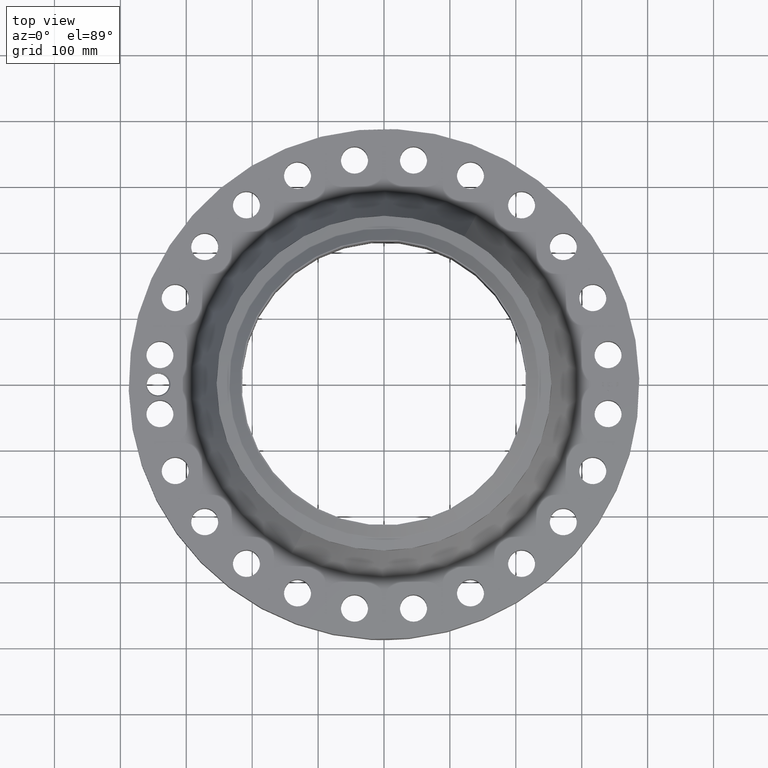
[diagram: clean part render]
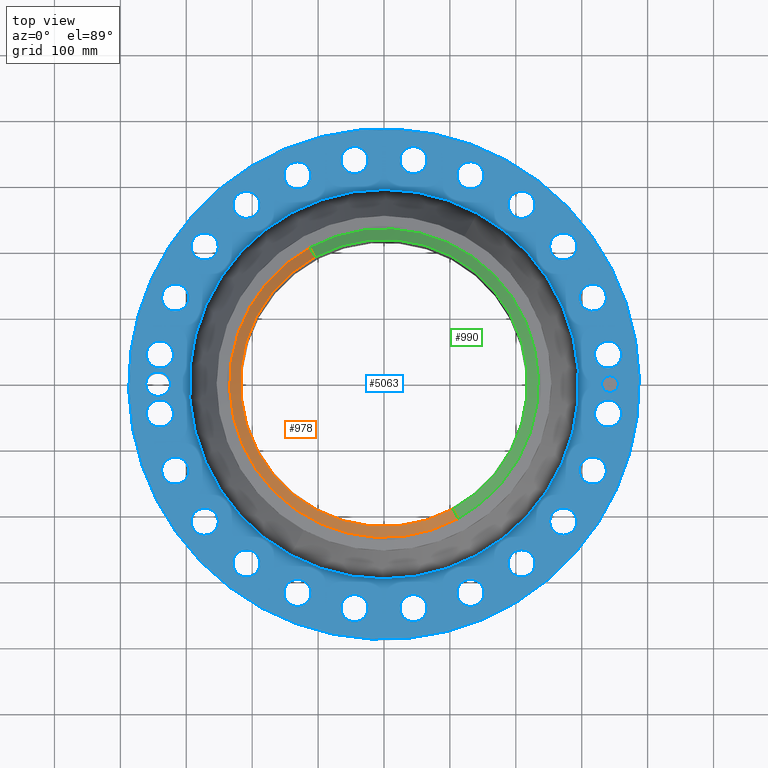
[diagram: same view with three faces highlighted in distinct colors, each labeled with its STEP entity id]
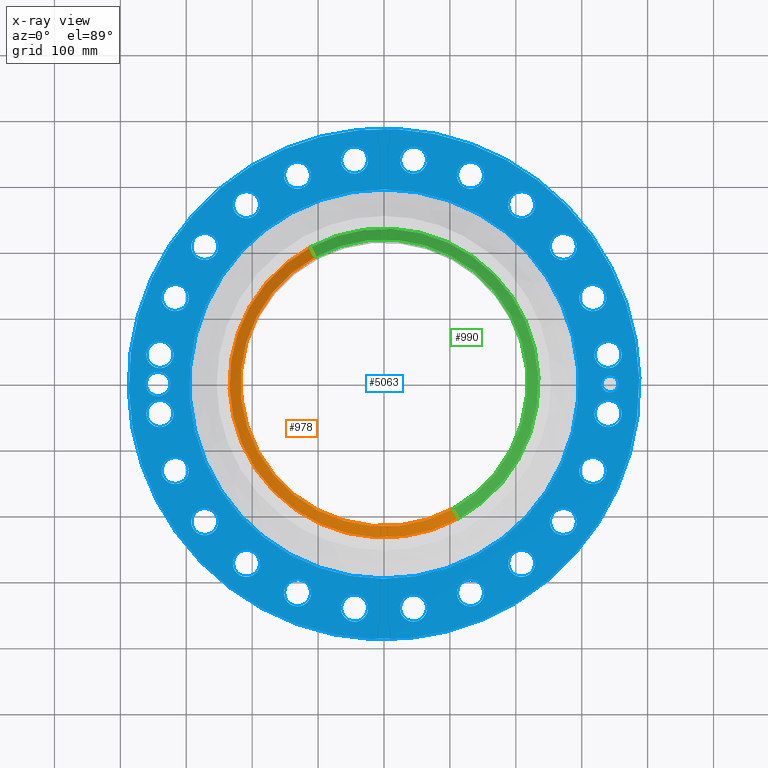
[diagram: x-ray of the same camera — body ghosted, the three highlighted faces saturated]
A machine part, top view with three faces highlighted in distinct colors.
The next image is the same camera in x-ray (body ghosted, the three faces saturated) — at least one of them is partly hidden behind the body in this view.
Their STEP definitions:

[orange] entity #978 — the highlighted conical surface has half-angle 52.5 deg.
#524=AXIS2_PLACEMENT_3D('Circle Axis2P3D',#522,#523,$) ;
#951=AXIS2_PLACEMENT_3D('Cone Axis2P3D',#948,#949,#950) ;
#962=AXIS2_PLACEMENT_3D('Circle Axis2P3D',#960,#961,$) ;
#517=CARTESIAN_POINT('Vertex',(4.11286712056,-7.52855276522,6.99500000003)) ;
#519=CARTESIAN_POINT('Vertex',(-4.11286712056,7.52855276522,6.99500000003)) ;
#522=CARTESIAN_POINT('Axis2P3D Location',(0.,0.,6.99500000003)) ;
#948=CARTESIAN_POINT('Axis2P3D Location',(0.,0.,6.99500000003)) ;
#953=CARTESIAN_POINT('Line Origine',(-4.26780842311,7.81217091713,6.74701437259)) ;
#957=CARTESIAN_POINT('Vertex',(-4.42274972566,8.09578906903,6.49902874516)) ;
#960=CARTESIAN_POINT('Axis2P3D Location',(0.,0.,6.49902874516)) ;
#964=CARTESIAN_POINT('Vertex',(4.42274972566,-8.09578906903,6.49902874516)) ;
#967=CARTESIAN_POINT('Line Origine',(4.26780842311,-7.81217091713,6.74701437259)) ;
#523=DIRECTION('Axis2P3D Direction',(0.,0.,-0.0393700787402)) ;
#949=DIRECTION('Axis2P3D Direction',(-0.,-0.,-0.0393700787402)) ;
#950=DIRECTION('Axis2P3D XDirection',(-0.0188750212049,0.0345504945626,0.)) ;
#954=DIRECTION('Vector Direction',(-0.014974561121,0.02741075027,-0.023966985394)) ;
#961=DIRECTION('Axis2P3D Direction',(0.,0.,-0.0393700787402)) ;
#968=DIRECTION('Vector Direction',(0.014974561121,-0.02741075027,-0.023966985394)) ;
#955=VECTOR('Line Direction',#954,0.0393700787402) ;
#969=VECTOR('Line Direction',#968,0.0393700787402) ;
#973=ORIENTED_EDGE('',*,*,#526,.F.) ;
#974=ORIENTED_EDGE('',*,*,#959,.T.) ;
#975=ORIENTED_EDGE('',*,*,#966,.T.) ;
#976=ORIENTED_EDGE('',*,*,#971,.F.) ;
#978=ADVANCED_FACE('PartBody',(#977),#952,.T.) ;
#525=CIRCLE('generated circle',#524,8.57874015751) ;
#963=CIRCLE('generated circle',#962,9.22510248106) ;
#952=CONICAL_SURFACE('Cone',#951,8.57874015751,0.916297857297) ;
#526=EDGE_CURVE('',#520,#518,#525,.F.) ;
#959=EDGE_CURVE('',#520,#958,#956,.T.) ;
#966=EDGE_CURVE('',#958,#965,#963,.F.) ;
#971=EDGE_CURVE('',#518,#965,#970,.T.) ;
#972=EDGE_LOOP('',(#973,#974,#975,#976)) ;
#977=FACE_OUTER_BOUND('',#972,.T.) ;
#956=LINE('Line',#953,#955) ;
#970=LINE('Line',#967,#969) ;
#518=VERTEX_POINT('',#517) ;
#520=VERTEX_POINT('',#519) ;
#958=VERTEX_POINT('',#957) ;
#965=VERTEX_POINT('',#964) ;

[blue] entity #5063 — the highlighted planar face has unit normal (0, 0, -1).
#3575=AXIS2_PLACEMENT_3D('Circle Axis2P3D',#3573,#3574,$) ;
#3601=AXIS2_PLACEMENT_3D('Circle Axis2P3D',#3599,#3600,$) ;
#4543=AXIS2_PLACEMENT_3D('Plane Axis2P3D',#4540,#4541,#4542) ;
#4547=AXIS2_PLACEMENT_3D('Circle Axis2P3D',#4545,#4546,$) ;
#4556=AXIS2_PLACEMENT_3D('Circle Axis2P3D',#4554,#4555,$) ;
#4593=AXIS2_PLACEMENT_3D('Circle Axis2P3D',#4591,#4592,$) ;
#4600=AXIS2_PLACEMENT_3D('Circle Axis2P3D',#4598,#4599,$) ;
#4611=AXIS2_PLACEMENT_3D('Circle Axis2P3D',#4609,#4610,$) ;
#4620=AXIS2_PLACEMENT_3D('Circle Axis2P3D',#4618,#4619,$) ;
#4633=AXIS2_PLACEMENT_3D('Circle Axis2P3D',#4631,#4632,$) ;
#4642=AXIS2_PLACEMENT_3D('Circle Axis2P3D',#4640,#4641,$) ;
#4651=AXIS2_PLACEMENT_3D('Circle Axis2P3D',#4649,#4650,$) ;
#4660=AXIS2_PLACEMENT_3D('Circle Axis2P3D',#4658,#4659,$) ;
#4669=AXIS2_PLACEMENT_3D('Circle Axis2P3D',#4667,#4668,$) ;
#4678=AXIS2_PLACEMENT_3D('Circle Axis2P3D',#4676,#4677,$) ;
#4687=AXIS2_PLACEMENT_3D('Circle Axis2P3D',#4685,#4686,$) ;
#4696=AXIS2_PLACEMENT_3D('Circle Axis2P3D',#4694,#4695,$) ;
#4705=AXIS2_PLACEMENT_3D('Circle Axis2P3D',#4703,#4704,$) ;
#4714=AXIS2_PLACEMENT_3D('Circle Axis2P3D',#4712,#4713,$) ;
#4723=AXIS2_PLACEMENT_3D('Circle Axis2P3D',#4721,#4722,$) ;
#4732=AXIS2_PLACEMENT_3D('Circle Axis2P3D',#4730,#4731,$) ;
#4741=AXIS2_PLACEMENT_3D('Circle Axis2P3D',#4739,#4740,$) ;
#4750=AXIS2_PLACEMENT_3D('Circle Axis2P3D',#4748,#4749,$) ;
#4759=AXIS2_PLACEMENT_3D('Circle Axis2P3D',#4757,#4758,$) ;
#4768=AXIS2_PLACEMENT_3D('Circle Axis2P3D',#4766,#4767,$) ;
#4777=AXIS2_PLACEMENT_3D('Circle Axis2P3D',#4775,#4776,$) ;
#4786=AXIS2_PLACEMENT_3D('Circle Axis2P3D',#4784,#4785,$) ;
#4795=AXIS2_PLACEMENT_3D('Circle Axis2P3D',#4793,#4794,$) ;
#4804=AXIS2_PLACEMENT_3D('Circle Axis2P3D',#4802,#4803,$) ;
#4813=AXIS2_PLACEMENT_3D('Circle Axis2P3D',#4811,#4812,$) ;
#4822=AXIS2_PLACEMENT_3D('Circle Axis2P3D',#4820,#4821,$) ;
#4831=AXIS2_PLACEMENT_3D('Circle Axis2P3D',#4829,#4830,$) ;
#4840=AXIS2_PLACEMENT_3D('Circle Axis2P3D',#4838,#4839,$) ;
#4849=AXIS2_PLACEMENT_3D('Circle Axis2P3D',#4847,#4848,$) ;
#4858=AXIS2_PLACEMENT_3D('Circle Axis2P3D',#4856,#4857,$) ;
#4867=AXIS2_PLACEMENT_3D('Circle Axis2P3D',#4865,#4866,$) ;
#4876=AXIS2_PLACEMENT_3D('Circle Axis2P3D',#4874,#4875,$) ;
#4885=AXIS2_PLACEMENT_3D('Circle Axis2P3D',#4883,#4884,$) ;
#4894=AXIS2_PLACEMENT_3D('Circle Axis2P3D',#4892,#4893,$) ;
#4903=AXIS2_PLACEMENT_3D('Circle Axis2P3D',#4901,#4902,$) ;
#4912=AXIS2_PLACEMENT_3D('Circle Axis2P3D',#4910,#4911,$) ;
#4921=AXIS2_PLACEMENT_3D('Circle Axis2P3D',#4919,#4920,$) ;
#4930=AXIS2_PLACEMENT_3D('Circle Axis2P3D',#4928,#4929,$) ;
#4939=AXIS2_PLACEMENT_3D('Circle Axis2P3D',#4937,#4938,$) ;
#4948=AXIS2_PLACEMENT_3D('Circle Axis2P3D',#4946,#4947,$) ;
#4957=AXIS2_PLACEMENT_3D('Circle Axis2P3D',#4955,#4956,$) ;
#4966=AXIS2_PLACEMENT_3D('Circle Axis2P3D',#4964,#4965,$) ;
#4975=AXIS2_PLACEMENT_3D('Circle Axis2P3D',#4973,#4974,$) ;
#4984=AXIS2_PLACEMENT_3D('Circle Axis2P3D',#4982,#4983,$) ;
#4993=AXIS2_PLACEMENT_3D('Circle Axis2P3D',#4991,#4992,$) ;
#5002=AXIS2_PLACEMENT_3D('Circle Axis2P3D',#5000,#5001,$) ;
#5011=AXIS2_PLACEMENT_3D('Circle Axis2P3D',#5009,#5010,$) ;
#5020=AXIS2_PLACEMENT_3D('Circle Axis2P3D',#5018,#5019,$) ;
#5029=AXIS2_PLACEMENT_3D('Circle Axis2P3D',#5027,#5028,$) ;
#5038=AXIS2_PLACEMENT_3D('Circle Axis2P3D',#5036,#5037,$) ;
#5047=AXIS2_PLACEMENT_3D('Circle Axis2P3D',#5045,#5046,$) ;
#5056=AXIS2_PLACEMENT_3D('Circle Axis2P3D',#5054,#5055,$) ;
#3573=CARTESIAN_POINT('Axis2P3D Location',(0.,0.,3.12500000001)) ;
#3577=CARTESIAN_POINT('Vertex',(-5.57702082881,-10.2086681509,3.12500000001)) ;
#3579=CARTESIAN_POINT('Vertex',(5.57702082881,10.2086681509,3.12500000001)) ;
#3599=CARTESIAN_POINT('Axis2P3D Location',(0.,0.,3.12500000001)) ;
#4540=CARTESIAN_POINT('Axis2P3D Location',(0.,15.2500000001,3.12500000001)) ;
#4545=CARTESIAN_POINT('Axis2P3D Location',(0.,0.,3.12500000001)) ;
#4549=CARTESIAN_POINT('Vertex',(7.31123946374,13.3831340689,3.12500000001)) ;
#4551=CARTESIAN_POINT('Vertex',(-7.31123946374,-13.3831340689,3.12500000001)) ;
#4554=CARTESIAN_POINT('Axis2P3D Location',(0.,0.,3.12500000001)) ;
#4564=CARTESIAN_POINT('Control Point',(-12.7500000001,-2.23792987641E-015,3.12500000001)) ;
#4565=CARTESIAN_POINT('Control Point',(-12.752262941,0.0673684913569,3.12500000001)) ;
#4566=CARTESIAN_POINT('Control Point',(-12.7620945248,0.134362677298,3.12500000001)) ;
#4567=CARTESIAN_POINT('Control Point',(-12.7794410656,0.199838111949,3.12500000001)) ;
#4568=CARTESIAN_POINT('Control Point',(-12.8184599724,0.299736414356,3.12500000001)) ;
#4569=CARTESIAN_POINT('Control Point',(-12.8742750232,0.39041675653,3.12500000001)) ;
#4570=CARTESIAN_POINT('Control Point',(-12.8971885321,0.422593361566,3.12500000001)) ;
#4571=CARTESIAN_POINT('Control Point',(-12.9221619993,0.453104278404,3.12500000001)) ;
#4572=CARTESIAN_POINT('Control Point',(-12.9490316459,0.481779496002,3.12500000001)) ;
#4573=CARTESIAN_POINT('Vertex',(-12.7500000001,-2.23792987641E-015,3.12500000001)) ;
#4575=CARTESIAN_POINT('Vertex',(-12.9490316459,0.481779496002,3.12500000001)) ;
#4579=CARTESIAN_POINT('Control Point',(-12.7500000001,0.,3.12500000001)) ;
#4580=CARTESIAN_POINT('Control Point',(-12.7522635569,-0.0673868237265,3.12500000001)) ;
#4581=CARTESIAN_POINT('Control Point',(-12.7620998827,-0.134399137774,3.12500000001)) ;
#4582=CARTESIAN_POINT('Control Point',(-12.779445479,-0.199869548292,3.12500000001)) ;
#4583=CARTESIAN_POINT('Control Point',(-12.8184799905,-0.299807540299,3.12500000001)) ;
#4584=CARTESIAN_POINT('Control Point',(-12.8742923839,-0.390471181381,3.12500000001)) ;
#4585=CARTESIAN_POINT('Control Point',(-12.8972348658,-0.422676584709,3.12500000001)) ;
#4586=CARTESIAN_POINT('Control Point',(-12.9222362974,-0.453206695873,3.12500000001)) ;
#4587=CARTESIAN_POINT('Control Point',(-12.9491313995,-0.481893551473,3.12500000001)) ;
#4588=CARTESIAN_POINT('Vertex',(-12.9491313995,-0.481893551473,3.12500000001)) ;
#4591=CARTESIAN_POINT('Axis2P3D Location',(-13.5000000001,8.95171950564E-015,3.12500000001)) ;
#4595=CARTESIAN_POINT('Vertex',(-14.1423026771,0.350891551706,3.12500000001)) ;
#4598=CARTESIAN_POINT('Axis2P3D Location',(-13.5000000001,8.95171950564E-015,3.12500000001)) ;
#4609=CARTESIAN_POINT('Axis2P3D Location',(13.3845056286,-1.76210359498,3.12500000001)) ;
#4613=CARTESIAN_POINT('Vertex',(12.6736637535,-1.37376890871,3.12500000001)) ;
#4615=CARTESIAN_POINT('Vertex',(14.0953475037,-2.15043828125,3.12500000001)) ;
#4618=CARTESIAN_POINT('Axis2P3D Location',(13.3845056286,-1.76210359498,3.12500000001)) ;
#4631=CARTESIAN_POINT('Axis2P3D Location',(12.472373689,-5.16622633695,3.12500000001)) ;
#4635=CARTESIAN_POINT('Vertex',(13.0584858019,-5.725308255,3.12500000001)) ;
#4637=CARTESIAN_POINT('Vertex',(11.886261576,-4.6071444189,3.12500000001)) ;
#4640=CARTESIAN_POINT('Axis2P3D Location',(12.472373689,-5.16622633695,3.12500000001)) ;
#4649=CARTESIAN_POINT('Axis2P3D Location',(10.710270094,-8.21827929165,3.12500000001)) ;
#4653=CARTESIAN_POINT('Vertex',(11.1317098728,-8.9100079327,3.12500000001)) ;
#4655=CARTESIAN_POINT('Vertex',(10.2888303152,-7.5265506506,3.12500000001)) ;
#4658=CARTESIAN_POINT('Axis2P3D Location',(10.710270094,-8.21827929165,3.12500000001)) ;
#4667=CARTESIAN_POINT('Axis2P3D Location',(8.21827929165,-10.710270094,3.12500000001)) ;
#4671=CARTESIAN_POINT('Vertex',(8.44632631188,-11.4875052943,3.12500000001)) ;
#4673=CARTESIAN_POINT('Vertex',(7.99023227142,-9.93303489368,3.12500000001)) ;
#4676=CARTESIAN_POINT('Axis2P3D Location',(8.21827929165,-10.710270094,3.12500000001)) ;
#4685=CARTESIAN_POINT('Axis2P3D Location',(5.16622633695,-12.472373689,3.12500000001)) ;
#4689=CARTESIAN_POINT('Vertex',(5.18533957104,-13.282148154,3.12500000001)) ;
#4691=CARTESIAN_POINT('Vertex',(5.14711310286,-11.6625992239,3.12500000001)) ;
#4694=CARTESIAN_POINT('Axis2P3D Location',(5.16622633695,-12.472373689,3.12500000001)) ;
#4703=CARTESIAN_POINT('Axis2P3D Location',(1.76210359498,-13.3845056286,3.12500000001)) ;
#4707=CARTESIAN_POINT('Vertex',(1.57098050761,-14.1716345669,3.12500000001)) ;
#4709=CARTESIAN_POINT('Vertex',(1.95322668235,-12.5973766903,3.12500000001)) ;
#4712=CARTESIAN_POINT('Axis2P3D Location',(1.76210359498,-13.3845056286,3.12500000001)) ;
#4721=CARTESIAN_POINT('Axis2P3D Location',(-1.76210359498,-13.3845056286,3.12500000001)) ;
#4725=CARTESIAN_POINT('Vertex',(-2.15043828125,-14.0953475037,3.12500000001)) ;
#4727=CARTESIAN_POINT('Vertex',(-1.37376890871,-12.6736637535,3.12500000001)) ;
#4730=CARTESIAN_POINT('Axis2P3D Location',(-1.76210359498,-13.3845056286,3.12500000001)) ;
#4739=CARTESIAN_POINT('Axis2P3D Location',(-5.16622633695,-12.472373689,3.12500000001)) ;
#4743=CARTESIAN_POINT('Vertex',(-5.725308255,-13.0584858019,3.12500000001)) ;
#4745=CARTESIAN_POINT('Vertex',(-4.6071444189,-11.886261576,3.12500000001)) ;
#4748=CARTESIAN_POINT('Axis2P3D Location',(-5.16622633695,-12.472373689,3.12500000001)) ;
#4757=CARTESIAN_POINT('Axis2P3D Location',(-8.21827929165,-10.710270094,3.12500000001)) ;
#4761=CARTESIAN_POINT('Vertex',(-8.9100079327,-11.1317098728,3.12500000001)) ;
#4763=CARTESIAN_POINT('Vertex',(-7.5265506506,-10.2888303152,3.12500000001)) ;
#4766=CARTESIAN_POINT('Axis2P3D Location',(-8.21827929165,-10.710270094,3.12500000001)) ;
#4775=CARTESIAN_POINT('Axis2P3D Location',(-10.710270094,-8.21827929165,3.12500000001)) ;
#4779=CARTESIAN_POINT('Vertex',(-11.4875052943,-8.44632631188,3.12500000001)) ;
#4781=CARTESIAN_POINT('Vertex',(-9.93303489368,-7.99023227142,3.12500000001)) ;
#4784=CARTESIAN_POINT('Axis2P3D Location',(-10.710270094,-8.21827929165,3.12500000001)) ;
#4793=CARTESIAN_POINT('Axis2P3D Location',(-12.472373689,-5.16622633695,3.12500000001)) ;
#4797=CARTESIAN_POINT('Vertex',(-13.282148154,-5.18533957104,3.12500000001)) ;
#4799=CARTESIAN_POINT('Vertex',(-11.6625992239,-5.14711310286,3.12500000001)) ;
#4802=CARTESIAN_POINT('Axis2P3D Location',(-12.472373689,-5.16622633695,3.12500000001)) ;
#4811=CARTESIAN_POINT('Axis2P3D Location',(-13.3845056286,-1.76210359498,3.12500000001)) ;
#4815=CARTESIAN_POINT('Vertex',(-14.1716345669,-1.57098050761,3.12500000001)) ;
#4817=CARTESIAN_POINT('Vertex',(-12.5973766903,-1.95322668235,3.12500000001)) ;
#4820=CARTESIAN_POINT('Axis2P3D Location',(-13.3845056286,-1.76210359498,3.12500000001)) ;
#4829=CARTESIAN_POINT('Axis2P3D Location',(-13.3845056286,1.76210359498,3.12500000001)) ;
#4833=CARTESIAN_POINT('Vertex',(-14.0953475037,2.15043828125,3.12500000001)) ;
#4835=CARTESIAN_POINT('Vertex',(-12.6736637535,1.37376890871,3.12500000001)) ;
#4838=CARTESIAN_POINT('Axis2P3D Location',(-13.3845056286,1.76210359498,3.12500000001)) ;
#4847=CARTESIAN_POINT('Axis2P3D Location',(-12.472373689,5.16622633695,3.12500000001)) ;
#4851=CARTESIAN_POINT('Vertex',(-13.0584858019,5.725308255,3.12500000001)) ;
#4853=CARTESIAN_POINT('Vertex',(-11.886261576,4.6071444189,3.12500000001)) ;
#4856=CARTESIAN_POINT('Axis2P3D Location',(-12.472373689,5.16622633695,3.12500000001)) ;
#4865=CARTESIAN_POINT('Axis2P3D Location',(-10.710270094,8.21827929165,3.12500000001)) ;
#4869=CARTESIAN_POINT('Vertex',(-11.1317098728,8.9100079327,3.12500000001)) ;
#4871=CARTESIAN_POINT('Vertex',(-10.2888303152,7.5265506506,3.12500000001)) ;
#4874=CARTESIAN_POINT('Axis2P3D Location',(-10.710270094,8.21827929165,3.12500000001)) ;
#4883=CARTESIAN_POINT('Axis2P3D Location',(-8.21827929165,10.710270094,3.12500000001)) ;
#4887=CARTESIAN_POINT('Vertex',(-8.44632631188,11.4875052943,3.12500000001)) ;
#4889=CARTESIAN_POINT('Vertex',(-7.99023227142,9.93303489368,3.12500000001)) ;
#4892=CARTESIAN_POINT('Axis2P3D Location',(-8.21827929165,10.710270094,3.12500000001)) ;
#4901=CARTESIAN_POINT('Axis2P3D Location',(-5.16622633695,12.472373689,3.12500000001)) ;
#4905=CARTESIAN_POINT('Vertex',(-5.18533957104,13.282148154,3.12500000001)) ;
#4907=CARTESIAN_POINT('Vertex',(-5.14711310286,11.6625992239,3.12500000001)) ;
#4910=CARTESIAN_POINT('Axis2P3D Location',(-5.16622633695,12.472373689,3.12500000001)) ;
#4919=CARTESIAN_POINT('Axis2P3D Location',(-1.76210359498,13.3845056286,3.12500000001)) ;
#4923=CARTESIAN_POINT('Vertex',(-1.57098050761,14.1716345669,3.12500000001)) ;
#4925=CARTESIAN_POINT('Vertex',(-1.95322668235,12.5973766903,3.12500000001)) ;
#4928=CARTESIAN_POINT('Axis2P3D Location',(-1.76210359498,13.3845056286,3.12500000001)) ;
#4937=CARTESIAN_POINT('Axis2P3D Location',(1.76210359498,13.3845056286,3.12500000001)) ;
#4941=CARTESIAN_POINT('Vertex',(2.15043828125,14.0953475037,3.12500000001)) ;
#4943=CARTESIAN_POINT('Vertex',(1.37376890871,12.6736637535,3.12500000001)) ;
#4946=CARTESIAN_POINT('Axis2P3D Location',(1.76210359498,13.3845056286,3.12500000001)) ;
#4955=CARTESIAN_POINT('Axis2P3D Location',(5.16622633695,12.472373689,3.12500000001)) ;
#4959=CARTESIAN_POINT('Vertex',(5.725308255,13.0584858019,3.12500000001)) ;
#4961=CARTESIAN_POINT('Vertex',(4.6071444189,11.886261576,3.12500000001)) ;
#4964=CARTESIAN_POINT('Axis2P3D Location',(5.16622633695,12.472373689,3.12500000001)) ;
#4973=CARTESIAN_POINT('Axis2P3D Location',(8.21827929165,10.710270094,3.12500000001)) ;
#4977=CARTESIAN_POINT('Vertex',(8.9100079327,11.1317098728,3.12500000001)) ;
#4979=CARTESIAN_POINT('Vertex',(7.5265506506,10.2888303152,3.12500000001)) ;
#4982=CARTESIAN_POINT('Axis2P3D Location',(8.21827929165,10.710270094,3.12500000001)) ;
#4991=CARTESIAN_POINT('Axis2P3D Location',(10.710270094,8.21827929165,3.12500000001)) ;
#4995=CARTESIAN_POINT('Vertex',(11.4875052943,8.44632631188,3.12500000001)) ;
#4997=CARTESIAN_POINT('Vertex',(9.93303489368,7.99023227142,3.12500000001)) ;
#5000=CARTESIAN_POINT('Axis2P3D Location',(10.710270094,8.21827929165,3.12500000001)) ;
#5009=CARTESIAN_POINT('Axis2P3D Location',(12.472373689,5.16622633695,3.12500000001)) ;
#5013=CARTESIAN_POINT('Vertex',(13.282148154,5.18533957104,3.12500000001)) ;
#5015=CARTESIAN_POINT('Vertex',(11.6625992239,5.14711310286,3.12500000001)) ;
#5018=CARTESIAN_POINT('Axis2P3D Location',(12.472373689,5.16622633695,3.12500000001)) ;
#5027=CARTESIAN_POINT('Axis2P3D Location',(13.3845056286,1.76210359498,3.12500000001)) ;
#5031=CARTESIAN_POINT('Vertex',(14.1716345669,1.57098050761,3.12500000001)) ;
#5033=CARTESIAN_POINT('Vertex',(12.5973766903,1.95322668235,3.12500000001)) ;
#5036=CARTESIAN_POINT('Axis2P3D Location',(13.3845056286,1.76210359498,3.12500000001)) ;
#5045=CARTESIAN_POINT('Axis2P3D Location',(13.5000000001,0.,3.12500000001)) ;
#5049=CARTESIAN_POINT('Vertex',(13.5000000001,0.499999995002,3.12500000001)) ;
#5051=CARTESIAN_POINT('Vertex',(13.5000000001,-0.499999995002,3.12500000001)) ;
#5054=CARTESIAN_POINT('Axis2P3D Location',(13.5000000001,0.,3.12500000001)) ;
#3574=DIRECTION('Axis2P3D Direction',(0.,0.,-0.0393700787402)) ;
#3600=DIRECTION('Axis2P3D Direction',(0.,0.,-0.0393700787402)) ;
#4541=DIRECTION('Axis2P3D Direction',(0.,0.,-0.0393700787402)) ;
#4542=DIRECTION('Axis2P3D XDirection',(0.0393700787402,0.,0.)) ;
#4546=DIRECTION('Axis2P3D Direction',(0.,0.,-0.0393700787402)) ;
#4555=DIRECTION('Axis2P3D Direction',(0.,0.,-0.0393700787402)) ;
#4592=DIRECTION('Axis2P3D Direction',(0.,0.,-0.0393700787402)) ;
#4599=DIRECTION('Axis2P3D Direction',(0.,0.,-0.0393700787402)) ;
#4610=DIRECTION('Axis2P3D Direction',(0.,0.,-0.0393700787402)) ;
#4619=DIRECTION('Axis2P3D Direction',(0.,0.,-0.0393700787402)) ;
#4632=DIRECTION('Axis2P3D Direction',(0.,0.,-0.0393700787402)) ;
#4641=DIRECTION('Axis2P3D Direction',(0.,0.,-0.0393700787402)) ;
#4650=DIRECTION('Axis2P3D Direction',(0.,0.,-0.0393700787402)) ;
#4659=DIRECTION('Axis2P3D Direction',(0.,0.,-0.0393700787402)) ;
#4668=DIRECTION('Axis2P3D Direction',(0.,0.,-0.0393700787402)) ;
#4677=DIRECTION('Axis2P3D Direction',(0.,0.,-0.0393700787402)) ;
#4686=DIRECTION('Axis2P3D Direction',(0.,0.,-0.0393700787402)) ;
#4695=DIRECTION('Axis2P3D Direction',(0.,0.,-0.0393700787402)) ;
#4704=DIRECTION('Axis2P3D Direction',(0.,0.,-0.0393700787402)) ;
#4713=DIRECTION('Axis2P3D Direction',(0.,0.,-0.0393700787402)) ;
#4722=DIRECTION('Axis2P3D Direction',(0.,0.,-0.0393700787402)) ;
#4731=DIRECTION('Axis2P3D Direction',(0.,0.,-0.0393700787402)) ;
#4740=DIRECTION('Axis2P3D Direction',(0.,0.,-0.0393700787402)) ;
#4749=DIRECTION('Axis2P3D Direction',(0.,0.,-0.0393700787402)) ;
#4758=DIRECTION('Axis2P3D Direction',(0.,0.,-0.0393700787402)) ;
#4767=DIRECTION('Axis2P3D Direction',(0.,0.,-0.0393700787402)) ;
#4776=DIRECTION('Axis2P3D Direction',(0.,0.,-0.0393700787402)) ;
#4785=DIRECTION('Axis2P3D Direction',(0.,0.,-0.0393700787402)) ;
#4794=DIRECTION('Axis2P3D Direction',(0.,0.,-0.0393700787402)) ;
#4803=DIRECTION('Axis2P3D Direction',(0.,0.,-0.0393700787402)) ;
#4812=DIRECTION('Axis2P3D Direction',(0.,0.,-0.0393700787402)) ;
#4821=DIRECTION('Axis2P3D Direction',(0.,0.,-0.0393700787402)) ;
#4830=DIRECTION('Axis2P3D Direction',(0.,0.,-0.0393700787402)) ;
#4839=DIRECTION('Axis2P3D Direction',(0.,0.,-0.0393700787402)) ;
#4848=DIRECTION('Axis2P3D Direction',(0.,0.,-0.0393700787402)) ;
#4857=DIRECTION('Axis2P3D Direction',(0.,0.,-0.0393700787402)) ;
#4866=DIRECTION('Axis2P3D Direction',(0.,0.,-0.0393700787402)) ;
#4875=DIRECTION('Axis2P3D Direction',(0.,0.,-0.0393700787402)) ;
#4884=DIRECTION('Axis2P3D Direction',(0.,0.,-0.0393700787402)) ;
#4893=DIRECTION('Axis2P3D Direction',(0.,0.,-0.0393700787402)) ;
#4902=DIRECTION('Axis2P3D Direction',(0.,0.,-0.0393700787402)) ;
#4911=DIRECTION('Axis2P3D Direction',(0.,0.,-0.0393700787402)) ;
#4920=DIRECTION('Axis2P3D Direction',(0.,0.,-0.0393700787402)) ;
#4929=DIRECTION('Axis2P3D Direction',(0.,0.,-0.0393700787402)) ;
#4938=DIRECTION('Axis2P3D Direction',(0.,0.,-0.0393700787402)) ;
#4947=DIRECTION('Axis2P3D Direction',(0.,0.,-0.0393700787402)) ;
#4956=DIRECTION('Axis2P3D Direction',(0.,0.,-0.0393700787402)) ;
#4965=DIRECTION('Axis2P3D Direction',(0.,0.,-0.0393700787402)) ;
#4974=DIRECTION('Axis2P3D Direction',(0.,0.,-0.0393700787402)) ;
#4983=DIRECTION('Axis2P3D Direction',(0.,0.,-0.0393700787402)) ;
#4992=DIRECTION('Axis2P3D Direction',(0.,0.,-0.0393700787402)) ;
#5001=DIRECTION('Axis2P3D Direction',(0.,0.,-0.0393700787402)) ;
#5010=DIRECTION('Axis2P3D Direction',(0.,0.,-0.0393700787402)) ;
#5019=DIRECTION('Axis2P3D Direction',(0.,0.,-0.0393700787402)) ;
#5028=DIRECTION('Axis2P3D Direction',(0.,0.,-0.0393700787402)) ;
#5037=DIRECTION('Axis2P3D Direction',(0.,0.,-0.0393700787402)) ;
#5046=DIRECTION('Axis2P3D Direction',(0.,0.,-0.0393700787402)) ;
#5055=DIRECTION('Axis2P3D Direction',(0.,0.,-0.0393700787402)) ;
#4560=ORIENTED_EDGE('',*,*,#4553,.F.) ;
#4561=ORIENTED_EDGE('',*,*,#4558,.F.) ;
#4604=ORIENTED_EDGE('',*,*,#4577,.F.) ;
#4605=ORIENTED_EDGE('',*,*,#4590,.T.) ;
#4606=ORIENTED_EDGE('',*,*,#4597,.T.) ;
#4607=ORIENTED_EDGE('',*,*,#4602,.T.) ;
#4624=ORIENTED_EDGE('',*,*,#4617,.T.) ;
#4625=ORIENTED_EDGE('',*,*,#4622,.T.) ;
#4628=ORIENTED_EDGE('',*,*,#3581,.T.) ;
#4629=ORIENTED_EDGE('',*,*,#3603,.T.) ;
#4646=ORIENTED_EDGE('',*,*,#4639,.T.) ;
#4647=ORIENTED_EDGE('',*,*,#4644,.T.) ;
#4664=ORIENTED_EDGE('',*,*,#4657,.T.) ;
#4665=ORIENTED_EDGE('',*,*,#4662,.T.) ;
#4682=ORIENTED_EDGE('',*,*,#4675,.T.) ;
#4683=ORIENTED_EDGE('',*,*,#4680,.T.) ;
#4700=ORIENTED_EDGE('',*,*,#4693,.T.) ;
#4701=ORIENTED_EDGE('',*,*,#4698,.T.) ;
#4718=ORIENTED_EDGE('',*,*,#4711,.T.) ;
#4719=ORIENTED_EDGE('',*,*,#4716,.T.) ;
#4736=ORIENTED_EDGE('',*,*,#4729,.T.) ;
#4737=ORIENTED_EDGE('',*,*,#4734,.T.) ;
#4754=ORIENTED_EDGE('',*,*,#4747,.T.) ;
#4755=ORIENTED_EDGE('',*,*,#4752,.T.) ;
#4772=ORIENTED_EDGE('',*,*,#4765,.T.) ;
#4773=ORIENTED_EDGE('',*,*,#4770,.T.) ;
#4790=ORIENTED_EDGE('',*,*,#4783,.T.) ;
#4791=ORIENTED_EDGE('',*,*,#4788,.T.) ;
#4808=ORIENTED_EDGE('',*,*,#4801,.T.) ;
#4809=ORIENTED_EDGE('',*,*,#4806,.T.) ;
#4826=ORIENTED_EDGE('',*,*,#4819,.T.) ;
#4827=ORIENTED_EDGE('',*,*,#4824,.T.) ;
#4844=ORIENTED_EDGE('',*,*,#4837,.T.) ;
#4845=ORIENTED_EDGE('',*,*,#4842,.T.) ;
#4862=ORIENTED_EDGE('',*,*,#4855,.T.) ;
#4863=ORIENTED_EDGE('',*,*,#4860,.T.) ;
#4880=ORIENTED_EDGE('',*,*,#4873,.T.) ;
#4881=ORIENTED_EDGE('',*,*,#4878,.T.) ;
#4898=ORIENTED_EDGE('',*,*,#4891,.T.) ;
#4899=ORIENTED_EDGE('',*,*,#4896,.T.) ;
#4916=ORIENTED_EDGE('',*,*,#4909,.T.) ;
#4917=ORIENTED_EDGE('',*,*,#4914,.T.) ;
#4934=ORIENTED_EDGE('',*,*,#4927,.T.) ;
#4935=ORIENTED_EDGE('',*,*,#4932,.T.) ;
#4952=ORIENTED_EDGE('',*,*,#4945,.T.) ;
#4953=ORIENTED_EDGE('',*,*,#4950,.T.) ;
#4970=ORIENTED_EDGE('',*,*,#4963,.T.) ;
#4971=ORIENTED_EDGE('',*,*,#4968,.T.) ;
#4988=ORIENTED_EDGE('',*,*,#4981,.T.) ;
#4989=ORIENTED_EDGE('',*,*,#4986,.T.) ;
#5006=ORIENTED_EDGE('',*,*,#4999,.T.) ;
#5007=ORIENTED_EDGE('',*,*,#5004,.T.) ;
#5024=ORIENTED_EDGE('',*,*,#5017,.T.) ;
#5025=ORIENTED_EDGE('',*,*,#5022,.T.) ;
#5042=ORIENTED_EDGE('',*,*,#5035,.T.) ;
#5043=ORIENTED_EDGE('',*,*,#5040,.T.) ;
#5060=ORIENTED_EDGE('',*,*,#5053,.T.) ;
#5061=ORIENTED_EDGE('',*,*,#5058,.T.) ;
#4608=FACE_BOUND('',#4603,.T.) ;
#4626=FACE_BOUND('',#4623,.T.) ;
#4630=FACE_BOUND('',#4627,.T.) ;
#4648=FACE_BOUND('',#4645,.T.) ;
#4666=FACE_BOUND('',#4663,.T.) ;
#4684=FACE_BOUND('',#4681,.T.) ;
#4702=FACE_BOUND('',#4699,.T.) ;
#4720=FACE_BOUND('',#4717,.T.) ;
#4738=FACE_BOUND('',#4735,.T.) ;
#4756=FACE_BOUND('',#4753,.T.) ;
#4774=FACE_BOUND('',#4771,.T.) ;
#4792=FACE_BOUND('',#4789,.T.) ;
#4810=FACE_BOUND('',#4807,.T.) ;
#4828=FACE_BOUND('',#4825,.T.) ;
#4846=FACE_BOUND('',#4843,.T.) ;
#4864=FACE_BOUND('',#4861,.T.) ;
#4882=FACE_BOUND('',#4879,.T.) ;
#4900=FACE_BOUND('',#4897,.T.) ;
#4918=FACE_BOUND('',#4915,.T.) ;
#4936=FACE_BOUND('',#4933,.T.) ;
#4954=FACE_BOUND('',#4951,.T.) ;
#4972=FACE_BOUND('',#4969,.T.) ;
#4990=FACE_BOUND('',#4987,.T.) ;
#5008=FACE_BOUND('',#5005,.T.) ;
#5026=FACE_BOUND('',#5023,.T.) ;
#5044=FACE_BOUND('',#5041,.T.) ;
#5062=FACE_BOUND('',#5059,.T.) ;
#5063=ADVANCED_FACE('PartBody',(#4562,#4608,#4626,#4630,#4648,#4666,#4684,#4702,#4720,#4738,#4756,#4774,#4792,#4810,#4828,#4846,#4864,#4882,#4900,#4918,#4936,#4954,#4972,#4990,#5008,#5026,#5044,#5062),#4544,.F.) ;
#4563=B_SPLINE_CURVE_WITH_KNOTS('',5,(#4564,#4565,#4566,#4567,#4568,#4569,#4570,#4571,#4572),.UNSPECIFIED.,.F.,.U.,(6,3,6),(0.,11.8009738027,18.7642855946),.UNSPECIFIED.) ;
#4578=B_SPLINE_CURVE_WITH_KNOTS('',5,(#4579,#4580,#4581,#4582,#4583,#4584,#4585,#4586,#4587),.UNSPECIFIED.,.F.,.U.,(6,3,6),(0.,11.8041850935,18.7846344754),.UNSPECIFIED.) ;
#3576=CIRCLE('generated circle',#3575,11.632715364) ;
#3602=CIRCLE('generated circle',#3601,11.632715364) ;
#4548=CIRCLE('generated circle',#4547,15.2500000001) ;
#4557=CIRCLE('generated circle',#4556,15.2500000001) ;
#4594=CIRCLE('generated circle',#4593,0.731900000003) ;
#4601=CIRCLE('generated circle',#4600,0.731900000003) ;
#4612=CIRCLE('generated circle',#4611,0.810000000003) ;
#4621=CIRCLE('generated circle',#4620,0.810000000003) ;
#4634=CIRCLE('generated circle',#4633,0.810000000003) ;
#4643=CIRCLE('generated circle',#4642,0.810000000003) ;
#4652=CIRCLE('generated circle',#4651,0.810000000003) ;
#4661=CIRCLE('generated circle',#4660,0.810000000003) ;
#4670=CIRCLE('generated circle',#4669,0.810000000003) ;
#4679=CIRCLE('generated circle',#4678,0.810000000003) ;
#4688=CIRCLE('generated circle',#4687,0.810000000003) ;
#4697=CIRCLE('generated circle',#4696,0.810000000003) ;
#4706=CIRCLE('generated circle',#4705,0.810000000003) ;
#4715=CIRCLE('generated circle',#4714,0.810000000003) ;
#4724=CIRCLE('generated circle',#4723,0.810000000003) ;
#4733=CIRCLE('generated circle',#4732,0.810000000003) ;
#4742=CIRCLE('generated circle',#4741,0.810000000003) ;
#4751=CIRCLE('generated circle',#4750,0.810000000003) ;
#4760=CIRCLE('generated circle',#4759,0.810000000003) ;
#4769=CIRCLE('generated circle',#4768,0.810000000003) ;
#4778=CIRCLE('generated circle',#4777,0.810000000003) ;
#4787=CIRCLE('generated circle',#4786,0.810000000003) ;
#4796=CIRCLE('generated circle',#4795,0.810000000003) ;
#4805=CIRCLE('generated circle',#4804,0.810000000003) ;
#4814=CIRCLE('generated circle',#4813,0.810000000003) ;
#4823=CIRCLE('generated circle',#4822,0.810000000003) ;
#4832=CIRCLE('generated circle',#4831,0.810000000003) ;
#4841=CIRCLE('generated circle',#4840,0.810000000003) ;
#4850=CIRCLE('generated circle',#4849,0.810000000003) ;
#4859=CIRCLE('generated circle',#4858,0.810000000003) ;
#4868=CIRCLE('generated circle',#4867,0.810000000003) ;
#4877=CIRCLE('generated circle',#4876,0.810000000003) ;
#4886=CIRCLE('generated circle',#4885,0.810000000003) ;
#4895=CIRCLE('generated circle',#4894,0.810000000003) ;
#4904=CIRCLE('generated circle',#4903,0.810000000003) ;
#4913=CIRCLE('generated circle',#4912,0.810000000003) ;
#4922=CIRCLE('generated circle',#4921,0.810000000003) ;
#4931=CIRCLE('generated circle',#4930,0.810000000003) ;
#4940=CIRCLE('generated circle',#4939,0.810000000003) ;
#4949=CIRCLE('generated circle',#4948,0.810000000003) ;
#4958=CIRCLE('generated circle',#4957,0.810000000003) ;
#4967=CIRCLE('generated circle',#4966,0.810000000003) ;
#4976=CIRCLE('generated circle',#4975,0.810000000003) ;
#4985=CIRCLE('generated circle',#4984,0.810000000003) ;
#4994=CIRCLE('generated circle',#4993,0.810000000003) ;
#5003=CIRCLE('generated circle',#5002,0.810000000003) ;
#5012=CIRCLE('generated circle',#5011,0.810000000003) ;
#5021=CIRCLE('generated circle',#5020,0.810000000003) ;
#5030=CIRCLE('generated circle',#5029,0.810000000003) ;
#5039=CIRCLE('generated circle',#5038,0.810000000003) ;
#5048=CIRCLE('generated circle',#5047,0.499999995002) ;
#5057=CIRCLE('generated circle',#5056,0.499999995002) ;
#3581=EDGE_CURVE('',#3578,#3580,#3576,.T.) ;
#3603=EDGE_CURVE('',#3580,#3578,#3602,.T.) ;
#4553=EDGE_CURVE('',#4550,#4552,#4548,.T.) ;
#4558=EDGE_CURVE('',#4552,#4550,#4557,.T.) ;
#4577=EDGE_CURVE('',#4574,#4576,#4563,.T.) ;
#4590=EDGE_CURVE('',#4574,#4589,#4578,.T.) ;
#4597=EDGE_CURVE('',#4589,#4596,#4594,.T.) ;
#4602=EDGE_CURVE('',#4596,#4576,#4601,.T.) ;
#4617=EDGE_CURVE('',#4614,#4616,#4612,.T.) ;
#4622=EDGE_CURVE('',#4616,#4614,#4621,.T.) ;
#4639=EDGE_CURVE('',#4636,#4638,#4634,.T.) ;
#4644=EDGE_CURVE('',#4638,#4636,#4643,.T.) ;
#4657=EDGE_CURVE('',#4654,#4656,#4652,.T.) ;
#4662=EDGE_CURVE('',#4656,#4654,#4661,.T.) ;
#4675=EDGE_CURVE('',#4672,#4674,#4670,.T.) ;
#4680=EDGE_CURVE('',#4674,#4672,#4679,.T.) ;
#4693=EDGE_CURVE('',#4690,#4692,#4688,.T.) ;
#4698=EDGE_CURVE('',#4692,#4690,#4697,.T.) ;
#4711=EDGE_CURVE('',#4708,#4710,#4706,.T.) ;
#4716=EDGE_CURVE('',#4710,#4708,#4715,.T.) ;
#4729=EDGE_CURVE('',#4726,#4728,#4724,.T.) ;
#4734=EDGE_CURVE('',#4728,#4726,#4733,.T.) ;
#4747=EDGE_CURVE('',#4744,#4746,#4742,.T.) ;
#4752=EDGE_CURVE('',#4746,#4744,#4751,.T.) ;
#4765=EDGE_CURVE('',#4762,#4764,#4760,.T.) ;
#4770=EDGE_CURVE('',#4764,#4762,#4769,.T.) ;
#4783=EDGE_CURVE('',#4780,#4782,#4778,.T.) ;
#4788=EDGE_CURVE('',#4782,#4780,#4787,.T.) ;
#4801=EDGE_CURVE('',#4798,#4800,#4796,.T.) ;
#4806=EDGE_CURVE('',#4800,#4798,#4805,.T.) ;
#4819=EDGE_CURVE('',#4816,#4818,#4814,.T.) ;
#4824=EDGE_CURVE('',#4818,#4816,#4823,.T.) ;
#4837=EDGE_CURVE('',#4834,#4836,#4832,.T.) ;
#4842=EDGE_CURVE('',#4836,#4834,#4841,.T.) ;
#4855=EDGE_CURVE('',#4852,#4854,#4850,.T.) ;
#4860=EDGE_CURVE('',#4854,#4852,#4859,.T.) ;
#4873=EDGE_CURVE('',#4870,#4872,#4868,.T.) ;
#4878=EDGE_CURVE('',#4872,#4870,#4877,.T.) ;
#4891=EDGE_CURVE('',#4888,#4890,#4886,.T.) ;
#4896=EDGE_CURVE('',#4890,#4888,#4895,.T.) ;
#4909=EDGE_CURVE('',#4906,#4908,#4904,.T.) ;
#4914=EDGE_CURVE('',#4908,#4906,#4913,.T.) ;
#4927=EDGE_CURVE('',#4924,#4926,#4922,.T.) ;
#4932=EDGE_CURVE('',#4926,#4924,#4931,.T.) ;
#4945=EDGE_CURVE('',#4942,#4944,#4940,.T.) ;
#4950=EDGE_CURVE('',#4944,#4942,#4949,.T.) ;
#4963=EDGE_CURVE('',#4960,#4962,#4958,.T.) ;
#4968=EDGE_CURVE('',#4962,#4960,#4967,.T.) ;
#4981=EDGE_CURVE('',#4978,#4980,#4976,.T.) ;
#4986=EDGE_CURVE('',#4980,#4978,#4985,.T.) ;
#4999=EDGE_CURVE('',#4996,#4998,#4994,.T.) ;
#5004=EDGE_CURVE('',#4998,#4996,#5003,.T.) ;
#5017=EDGE_CURVE('',#5014,#5016,#5012,.T.) ;
#5022=EDGE_CURVE('',#5016,#5014,#5021,.T.) ;
#5035=EDGE_CURVE('',#5032,#5034,#5030,.T.) ;
#5040=EDGE_CURVE('',#5034,#5032,#5039,.T.) ;
#5053=EDGE_CURVE('',#5050,#5052,#5048,.T.) ;
#5058=EDGE_CURVE('',#5052,#5050,#5057,.T.) ;
#4559=EDGE_LOOP('',(#4560,#4561)) ;
#4603=EDGE_LOOP('',(#4604,#4605,#4606,#4607)) ;
#4623=EDGE_LOOP('',(#4624,#4625)) ;
#4627=EDGE_LOOP('',(#4628,#4629)) ;
#4645=EDGE_LOOP('',(#4646,#4647)) ;
#4663=EDGE_LOOP('',(#4664,#4665)) ;
#4681=EDGE_LOOP('',(#4682,#4683)) ;
#4699=EDGE_LOOP('',(#4700,#4701)) ;
#4717=EDGE_LOOP('',(#4718,#4719)) ;
#4735=EDGE_LOOP('',(#4736,#4737)) ;
#4753=EDGE_LOOP('',(#4754,#4755)) ;
#4771=EDGE_LOOP('',(#4772,#4773)) ;
#4789=EDGE_LOOP('',(#4790,#4791)) ;
#4807=EDGE_LOOP('',(#4808,#4809)) ;
#4825=EDGE_LOOP('',(#4826,#4827)) ;
#4843=EDGE_LOOP('',(#4844,#4845)) ;
#4861=EDGE_LOOP('',(#4862,#4863)) ;
#4879=EDGE_LOOP('',(#4880,#4881)) ;
#4897=EDGE_LOOP('',(#4898,#4899)) ;
#4915=EDGE_LOOP('',(#4916,#4917)) ;
#4933=EDGE_LOOP('',(#4934,#4935)) ;
#4951=EDGE_LOOP('',(#4952,#4953)) ;
#4969=EDGE_LOOP('',(#4970,#4971)) ;
#4987=EDGE_LOOP('',(#4988,#4989)) ;
#5005=EDGE_LOOP('',(#5006,#5007)) ;
#5023=EDGE_LOOP('',(#5024,#5025)) ;
#5041=EDGE_LOOP('',(#5042,#5043)) ;
#5059=EDGE_LOOP('',(#5060,#5061)) ;
#4562=FACE_OUTER_BOUND('',#4559,.T.) ;
#4544=PLANE('',#4543) ;
#3578=VERTEX_POINT('',#3577) ;
#3580=VERTEX_POINT('',#3579) ;
#4550=VERTEX_POINT('',#4549) ;
#4552=VERTEX_POINT('',#4551) ;
#4574=VERTEX_POINT('',#4573) ;
#4576=VERTEX_POINT('',#4575) ;
#4589=VERTEX_POINT('',#4588) ;
#4596=VERTEX_POINT('',#4595) ;
#4614=VERTEX_POINT('',#4613) ;
#4616=VERTEX_POINT('',#4615) ;
#4636=VERTEX_POINT('',#4635) ;
#4638=VERTEX_POINT('',#4637) ;
#4654=VERTEX_POINT('',#4653) ;
#4656=VERTEX_POINT('',#4655) ;
#4672=VERTEX_POINT('',#4671) ;
#4674=VERTEX_POINT('',#4673) ;
#4690=VERTEX_POINT('',#4689) ;
#4692=VERTEX_POINT('',#4691) ;
#4708=VERTEX_POINT('',#4707) ;
#4710=VERTEX_POINT('',#4709) ;
#4726=VERTEX_POINT('',#4725) ;
#4728=VERTEX_POINT('',#4727) ;
#4744=VERTEX_POINT('',#4743) ;
#4746=VERTEX_POINT('',#4745) ;
#4762=VERTEX_POINT('',#4761) ;
#4764=VERTEX_POINT('',#4763) ;
#4780=VERTEX_POINT('',#4779) ;
#4782=VERTEX_POINT('',#4781) ;
#4798=VERTEX_POINT('',#4797) ;
#4800=VERTEX_POINT('',#4799) ;
#4816=VERTEX_POINT('',#4815) ;
#4818=VERTEX_POINT('',#4817) ;
#4834=VERTEX_POINT('',#4833) ;
#4836=VERTEX_POINT('',#4835) ;
#4852=VERTEX_POINT('',#4851) ;
#4854=VERTEX_POINT('',#4853) ;
#4870=VERTEX_POINT('',#4869) ;
#4872=VERTEX_POINT('',#4871) ;
#4888=VERTEX_POINT('',#4887) ;
#4890=VERTEX_POINT('',#4889) ;
#4906=VERTEX_POINT('',#4905) ;
#4908=VERTEX_POINT('',#4907) ;
#4924=VERTEX_POINT('',#4923) ;
#4926=VERTEX_POINT('',#4925) ;
#4942=VERTEX_POINT('',#4941) ;
#4944=VERTEX_POINT('',#4943) ;
#4960=VERTEX_POINT('',#4959) ;
#4962=VERTEX_POINT('',#4961) ;
#4978=VERTEX_POINT('',#4977) ;
#4980=VERTEX_POINT('',#4979) ;
#4996=VERTEX_POINT('',#4995) ;
#4998=VERTEX_POINT('',#4997) ;
#5014=VERTEX_POINT('',#5013) ;
#5016=VERTEX_POINT('',#5015) ;
#5032=VERTEX_POINT('',#5031) ;
#5034=VERTEX_POINT('',#5033) ;
#5050=VERTEX_POINT('',#5049) ;
#5052=VERTEX_POINT('',#5051) ;

[green] entity #990 — the highlighted conical surface has half-angle 52.5 deg.
#515=AXIS2_PLACEMENT_3D('Circle Axis2P3D',#513,#514,$) ;
#951=AXIS2_PLACEMENT_3D('Cone Axis2P3D',#948,#949,#950) ;
#981=AXIS2_PLACEMENT_3D('Circle Axis2P3D',#979,#980,$) ;
#513=CARTESIAN_POINT('Axis2P3D Location',(0.,0.,6.99500000003)) ;
#517=CARTESIAN_POINT('Vertex',(4.11286712056,-7.52855276522,6.99500000003)) ;
#519=CARTESIAN_POINT('Vertex',(-4.11286712056,7.52855276522,6.99500000003)) ;
#948=CARTESIAN_POINT('Axis2P3D Location',(0.,0.,6.99500000003)) ;
#953=CARTESIAN_POINT('Line Origine',(-4.26780842311,7.81217091713,6.74701437259)) ;
#957=CARTESIAN_POINT('Vertex',(-4.42274972566,8.09578906903,6.49902874516)) ;
#964=CARTESIAN_POINT('Vertex',(4.42274972566,-8.09578906903,6.49902874516)) ;
#967=CARTESIAN_POINT('Line Origine',(4.26780842311,-7.81217091713,6.74701437259)) ;
#979=CARTESIAN_POINT('Axis2P3D Location',(0.,0.,6.49902874516)) ;
#514=DIRECTION('Axis2P3D Direction',(0.,0.,-0.0393700787402)) ;
#949=DIRECTION('Axis2P3D Direction',(-0.,-0.,-0.0393700787402)) ;
#950=DIRECTION('Axis2P3D XDirection',(-0.0188750212049,0.0345504945626,0.)) ;
#954=DIRECTION('Vector Direction',(-0.014974561121,0.02741075027,-0.023966985394)) ;
#968=DIRECTION('Vector Direction',(0.014974561121,-0.02741075027,-0.023966985394)) ;
#980=DIRECTION('Axis2P3D Direction',(0.,0.,-0.0393700787402)) ;
#955=VECTOR('Line Direction',#954,0.0393700787402) ;
#969=VECTOR('Line Direction',#968,0.0393700787402) ;
#985=ORIENTED_EDGE('',*,*,#521,.F.) ;
#986=ORIENTED_EDGE('',*,*,#971,.T.) ;
#987=ORIENTED_EDGE('',*,*,#983,.T.) ;
#988=ORIENTED_EDGE('',*,*,#959,.F.) ;
#990=ADVANCED_FACE('PartBody',(#989),#952,.T.) ;
#516=CIRCLE('generated circle',#515,8.57874015751) ;
#982=CIRCLE('generated circle',#981,9.22510248106) ;
#952=CONICAL_SURFACE('Cone',#951,8.57874015751,0.916297857297) ;
#521=EDGE_CURVE('',#518,#520,#516,.F.) ;
#959=EDGE_CURVE('',#520,#958,#956,.T.) ;
#971=EDGE_CURVE('',#518,#965,#970,.T.) ;
#983=EDGE_CURVE('',#965,#958,#982,.F.) ;
#984=EDGE_LOOP('',(#985,#986,#987,#988)) ;
#989=FACE_OUTER_BOUND('',#984,.T.) ;
#956=LINE('Line',#953,#955) ;
#970=LINE('Line',#967,#969) ;
#518=VERTEX_POINT('',#517) ;
#520=VERTEX_POINT('',#519) ;
#958=VERTEX_POINT('',#957) ;
#965=VERTEX_POINT('',#964) ;